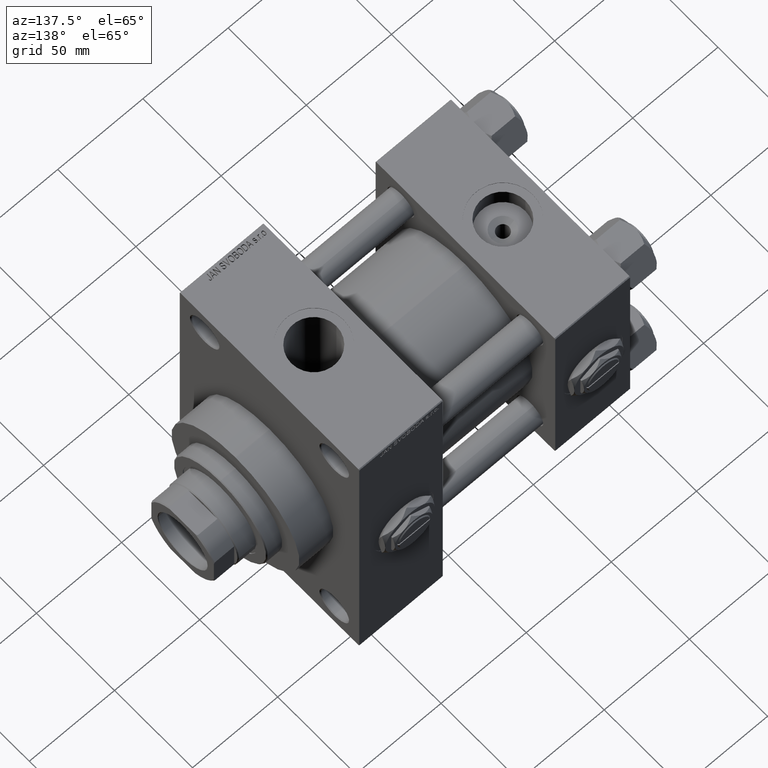
[diagram: clean part render]
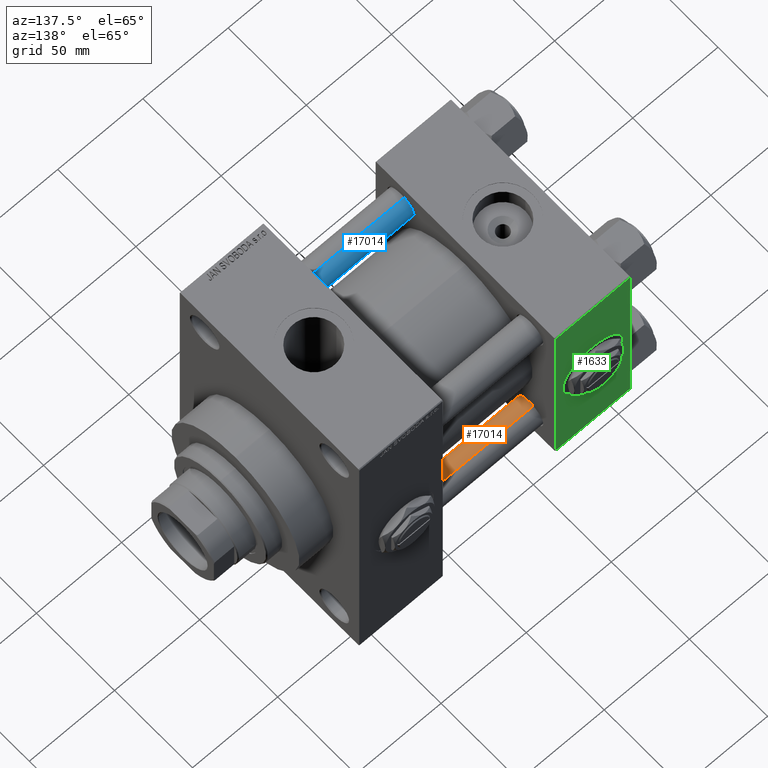
[diagram: same view with three faces highlighted in distinct colors, each labeled with its STEP entity id]
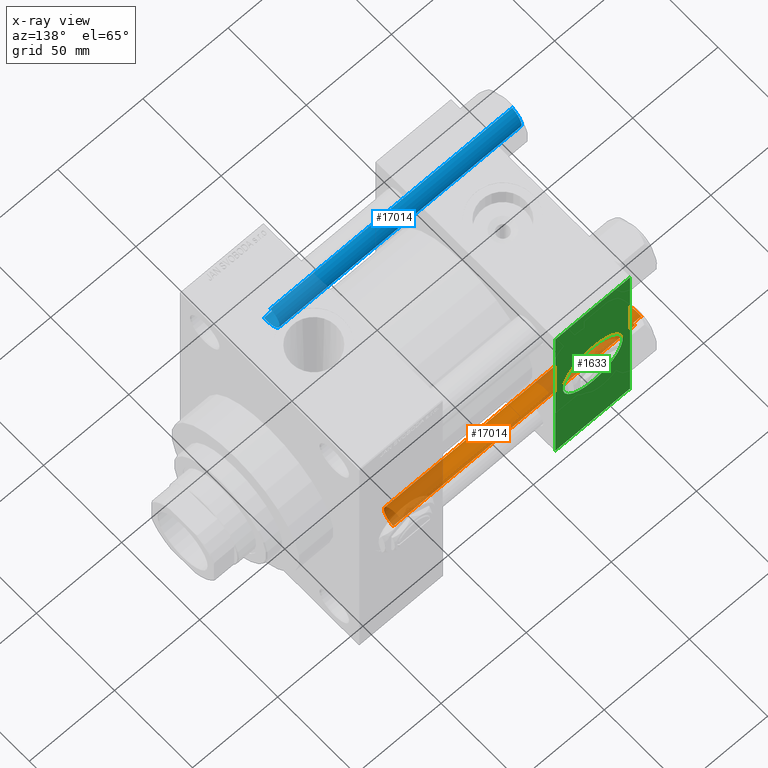
[diagram: x-ray of the same camera — body ghosted, the three highlighted faces saturated]
A machine part, auxiliary view with three faces highlighted in distinct colors.
The next image is the same camera in x-ray (body ghosted, the three faces saturated) — at least one of them is partly hidden behind the body in this view.
Their STEP definitions:

[orange] entity #17014 — the highlighted cylindrical surface (edge-blend (fillet) strip) has radius 8 mm, axis along (1, -0, 0).
#1163 = FACE_OUTER_BOUND ( 'NONE', #42328, .T. ) ;
#3518 = CIRCLE ( 'NONE', #46923, 8.000000000000000000 ) ;
#4329 = DIRECTION ( 'NONE',  ( 1.000000000000000000, 0.000000000000000000, 0.000000000000000000 ) ) ;
#4699 = CARTESIAN_POINT ( 'NONE',  ( 0.000000000000000000, 0.000000000000000000, 143.0000000000000000 ) ) ;
#4827 = DIRECTION ( 'NONE',  ( 0.000000000000000000, 0.000000000000000000, -1.000000000000000000 ) ) ;
#6383 = ORIENTED_EDGE ( 'NONE', *, *, #24731, .T. ) ;
#7910 = ORIENTED_EDGE ( 'NONE', *, *, #34220, .T. ) ;
#10032 = CARTESIAN_POINT ( 'NONE',  ( -8.000000000000000000, 0.000000000000000000, 143.0000000000000000 ) ) ;
#11783 = VERTEX_POINT ( 'NONE', #32484 ) ;
#16436 = DIRECTION ( 'NONE',  ( -0.000000000000000000, -0.000000000000000000, 1.000000000000000000 ) ) ;
#17014 = ADVANCED_FACE ( 'NONE', ( #1163 ), #19573, .T. ) ;
#17738 = VERTEX_POINT ( 'NONE', #48303 ) ;
#18423 = AXIS2_PLACEMENT_3D ( 'NONE', #42609, #4827, #4329 ) ;
#18588 = VERTEX_POINT ( 'NONE', #29204 ) ;
#19573 = CYLINDRICAL_SURFACE ( 'NONE', #41588, 8.000000000000000000 ) ;
#20062 = DIRECTION ( 'NONE',  ( -1.000000000000000000, 0.000000000000000000, 0.000000000000000000 ) ) ;
#20693 = CARTESIAN_POINT ( 'NONE',  ( -8.000000000000000000, 0.000000000000000000, 0.4999999999999726885 ) ) ;
#24731 = EDGE_CURVE ( 'NONE', #17738, #18588, #33704, .T. ) ;
#25415 = DIRECTION ( 'NONE',  ( -0.000000000000000000, -0.000000000000000000, -1.000000000000000000 ) ) ;
#27052 = CARTESIAN_POINT ( 'NONE',  ( 8.000000000000000000, 9.797174393178825657E-16, 143.0000000000000000 ) ) ;
#29061 = VECTOR ( 'NONE', #25415, 1000.000000000000000 ) ;
#29204 = CARTESIAN_POINT ( 'NONE',  ( -8.000000000000000000, 0.000000000000000000, 142.4999999999999716 ) ) ;
#30586 = ORIENTED_EDGE ( 'NONE', *, *, #41503, .F. ) ;
#30827 = DIRECTION ( 'NONE',  ( -0.000000000000000000, -0.000000000000000000, -1.000000000000000000 ) ) ;
#32484 = CARTESIAN_POINT ( 'NONE',  ( 8.000000000000000000, 9.797174393178825657E-16, 0.4999999999999726885 ) ) ;
#32545 = VECTOR ( 'NONE', #30827, 1000.000000000000000 ) ;
#33704 = CIRCLE ( 'NONE', #18423, 8.000000000000000000 ) ;
#34220 = EDGE_CURVE ( 'NONE', #18588, #46529, #43789, .T. ) ;
#35108 = LINE ( 'NONE', #27052, #32545 ) ;
#35580 = CARTESIAN_POINT ( 'NONE',  ( 0.000000000000000000, 0.000000000000000000, 0.4999999999999726885 ) ) ;
#39449 = DIRECTION ( 'NONE',  ( -0.000000000000000000, -0.000000000000000000, -1.000000000000000000 ) ) ;
#39494 = EDGE_CURVE ( 'NONE', #46529, #11783, #3518, .T. ) ;
#41503 = EDGE_CURVE ( 'NONE', #17738, #11783, #35108, .T. ) ;
#41588 = AXIS2_PLACEMENT_3D ( 'NONE', #4699, #39449, #20062 ) ;
#42328 = EDGE_LOOP ( 'NONE', ( #30586, #6383, #7910, #46260 ) ) ;
#42609 = CARTESIAN_POINT ( 'NONE',  ( 0.000000000000000000, 0.000000000000000000, 142.4999999999999716 ) ) ;
#43620 = DIRECTION ( 'NONE',  ( 1.000000000000000000, 0.000000000000000000, 0.000000000000000000 ) ) ;
#43789 = LINE ( 'NONE', #10032, #29061 ) ;
#46260 = ORIENTED_EDGE ( 'NONE', *, *, #39494, .T. ) ;
#46529 = VERTEX_POINT ( 'NONE', #20693 ) ;
#46923 = AXIS2_PLACEMENT_3D ( 'NONE', #35580, #16436, #43620 ) ;
#48303 = CARTESIAN_POINT ( 'NONE',  ( 8.000000000000000000, 9.797174393178825657E-16, 142.4999999999999716 ) ) ;

[blue] entity #17014 — the highlighted cylindrical surface (edge-blend (fillet) strip) has radius 8 mm, axis along (1, 0, 0).
#1163 = FACE_OUTER_BOUND ( 'NONE', #42328, .T. ) ;
#3518 = CIRCLE ( 'NONE', #46923, 8.000000000000000000 ) ;
#4329 = DIRECTION ( 'NONE',  ( 1.000000000000000000, 0.000000000000000000, 0.000000000000000000 ) ) ;
#4699 = CARTESIAN_POINT ( 'NONE',  ( 0.000000000000000000, 0.000000000000000000, 143.0000000000000000 ) ) ;
#4827 = DIRECTION ( 'NONE',  ( 0.000000000000000000, 0.000000000000000000, -1.000000000000000000 ) ) ;
#6383 = ORIENTED_EDGE ( 'NONE', *, *, #24731, .T. ) ;
#7910 = ORIENTED_EDGE ( 'NONE', *, *, #34220, .T. ) ;
#10032 = CARTESIAN_POINT ( 'NONE',  ( -8.000000000000000000, 0.000000000000000000, 143.0000000000000000 ) ) ;
#11783 = VERTEX_POINT ( 'NONE', #32484 ) ;
#16436 = DIRECTION ( 'NONE',  ( -0.000000000000000000, -0.000000000000000000, 1.000000000000000000 ) ) ;
#17014 = ADVANCED_FACE ( 'NONE', ( #1163 ), #19573, .T. ) ;
#17738 = VERTEX_POINT ( 'NONE', #48303 ) ;
#18423 = AXIS2_PLACEMENT_3D ( 'NONE', #42609, #4827, #4329 ) ;
#18588 = VERTEX_POINT ( 'NONE', #29204 ) ;
#19573 = CYLINDRICAL_SURFACE ( 'NONE', #41588, 8.000000000000000000 ) ;
#20062 = DIRECTION ( 'NONE',  ( -1.000000000000000000, 0.000000000000000000, 0.000000000000000000 ) ) ;
#20693 = CARTESIAN_POINT ( 'NONE',  ( -8.000000000000000000, 0.000000000000000000, 0.4999999999999726885 ) ) ;
#24731 = EDGE_CURVE ( 'NONE', #17738, #18588, #33704, .T. ) ;
#25415 = DIRECTION ( 'NONE',  ( -0.000000000000000000, -0.000000000000000000, -1.000000000000000000 ) ) ;
#27052 = CARTESIAN_POINT ( 'NONE',  ( 8.000000000000000000, 9.797174393178825657E-16, 143.0000000000000000 ) ) ;
#29061 = VECTOR ( 'NONE', #25415, 1000.000000000000000 ) ;
#29204 = CARTESIAN_POINT ( 'NONE',  ( -8.000000000000000000, 0.000000000000000000, 142.4999999999999716 ) ) ;
#30586 = ORIENTED_EDGE ( 'NONE', *, *, #41503, .F. ) ;
#30827 = DIRECTION ( 'NONE',  ( -0.000000000000000000, -0.000000000000000000, -1.000000000000000000 ) ) ;
#32484 = CARTESIAN_POINT ( 'NONE',  ( 8.000000000000000000, 9.797174393178825657E-16, 0.4999999999999726885 ) ) ;
#32545 = VECTOR ( 'NONE', #30827, 1000.000000000000000 ) ;
#33704 = CIRCLE ( 'NONE', #18423, 8.000000000000000000 ) ;
#34220 = EDGE_CURVE ( 'NONE', #18588, #46529, #43789, .T. ) ;
#35108 = LINE ( 'NONE', #27052, #32545 ) ;
#35580 = CARTESIAN_POINT ( 'NONE',  ( 0.000000000000000000, 0.000000000000000000, 0.4999999999999726885 ) ) ;
#39449 = DIRECTION ( 'NONE',  ( -0.000000000000000000, -0.000000000000000000, -1.000000000000000000 ) ) ;
#39494 = EDGE_CURVE ( 'NONE', #46529, #11783, #3518, .T. ) ;
#41503 = EDGE_CURVE ( 'NONE', #17738, #11783, #35108, .T. ) ;
#41588 = AXIS2_PLACEMENT_3D ( 'NONE', #4699, #39449, #20062 ) ;
#42328 = EDGE_LOOP ( 'NONE', ( #30586, #6383, #7910, #46260 ) ) ;
#42609 = CARTESIAN_POINT ( 'NONE',  ( 0.000000000000000000, 0.000000000000000000, 142.4999999999999716 ) ) ;
#43620 = DIRECTION ( 'NONE',  ( 1.000000000000000000, 0.000000000000000000, 0.000000000000000000 ) ) ;
#43789 = LINE ( 'NONE', #10032, #29061 ) ;
#46260 = ORIENTED_EDGE ( 'NONE', *, *, #39494, .T. ) ;
#46529 = VERTEX_POINT ( 'NONE', #20693 ) ;
#46923 = AXIS2_PLACEMENT_3D ( 'NONE', #35580, #16436, #43620 ) ;
#48303 = CARTESIAN_POINT ( 'NONE',  ( 8.000000000000000000, 9.797174393178825657E-16, 142.4999999999999716 ) ) ;

[green] entity #1633 — the highlighted planar face has unit normal (0, 1, 0).
#62 = DIRECTION ( 'NONE',  ( 0.000000000000000000, 1.000000000000000000, 0.000000000000000000 ) ) ;
#1633 = ADVANCED_FACE ( 'NONE', ( #22595, #18573 ), #49273, .T. ) ;
#1927 = VERTEX_POINT ( 'NONE', #2899 ) ;
#2899 = CARTESIAN_POINT ( 'NONE',  ( 44.00000000000000000, 57.49999999999999289, -57.00000000000000711 ) ) ;
#4836 = ORIENTED_EDGE ( 'NONE', *, *, #33497, .F. ) ;
#5738 = VERTEX_POINT ( 'NONE', #36400 ) ;
#6683 = CARTESIAN_POINT ( 'NONE',  ( 44.00000000000000000, 57.49999999999999289, -57.00000000000000711 ) ) ;
#7319 = EDGE_CURVE ( 'NONE', #26395, #14190, #27648, .T. ) ;
#7536 = AXIS2_PLACEMENT_3D ( 'NONE', #43712, #39437, #20804 ) ;
#7977 = DIRECTION ( 'NONE',  ( 1.000000000000000000, 0.000000000000000000, 0.000000000000000000 ) ) ;
#9745 = VECTOR ( 'NONE', #42055, 1000.000000000000000 ) ;
#11193 = LINE ( 'NONE', #6683, #11887 ) ;
#11887 = VECTOR ( 'NONE', #37419, 1000.000000000000000 ) ;
#11951 = EDGE_LOOP ( 'NONE', ( #19171, #34339, #20572, #27022 ) ) ;
#12134 = CIRCLE ( 'NONE', #45116, 17.50000000000000000 ) ;
#14190 = VERTEX_POINT ( 'NONE', #21585 ) ;
#15555 = LINE ( 'NONE', #26633, #38217 ) ;
#15679 = CARTESIAN_POINT ( 'NONE',  ( 0.000000000000000000, 57.49999999999999289, 57.50000000000000711 ) ) ;
#15701 = EDGE_LOOP ( 'NONE', ( #4836, #48669 ) ) ;
#16979 = VERTEX_POINT ( 'NONE', #42487 ) ;
#18430 = CARTESIAN_POINT ( 'NONE',  ( 0.000000000000000000, 57.49999999999999289, 57.00000000000003553 ) ) ;
#18573 = FACE_OUTER_BOUND ( 'NONE', #11951, .T. ) ;
#19171 = ORIENTED_EDGE ( 'NONE', *, *, #33987, .T. ) ;
#19387 = LINE ( 'NONE', #22187, #9745 ) ;
#20572 = ORIENTED_EDGE ( 'NONE', *, *, #24772, .F. ) ;
#20804 = DIRECTION ( 'NONE',  ( 0.000000000000000000, 0.000000000000000000, 1.000000000000000000 ) ) ;
#21585 = CARTESIAN_POINT ( 'NONE',  ( 22.00000000000000000, 57.49999999999999289, 17.50000000000000000 ) ) ;
#22187 = CARTESIAN_POINT ( 'NONE',  ( 44.00000000000000000, 57.49999999999999289, 57.50000000000000711 ) ) ;
#22595 = FACE_BOUND ( 'NONE', #15701, .T. ) ;
#23228 = LINE ( 'NONE', #15679, #31280 ) ;
#23434 = EDGE_CURVE ( 'NONE', #1927, #5738, #11193, .T. ) ;
#24772 = EDGE_CURVE ( 'NONE', #49677, #5738, #23228, .T. ) ;
#26395 = VERTEX_POINT ( 'NONE', #46596 ) ;
#26633 = CARTESIAN_POINT ( 'NONE',  ( 44.00000000000000000, 57.49999999999999289, 57.00000000000003553 ) ) ;
#27022 = ORIENTED_EDGE ( 'NONE', *, *, #46027, .T. ) ;
#27648 = CIRCLE ( 'NONE', #7536, 17.50000000000000000 ) ;
#30167 = DIRECTION ( 'NONE',  ( 0.000000000000000000, -0.000000000000000000, 1.000000000000000000 ) ) ;
#31280 = VECTOR ( 'NONE', #31526, 1000.000000000000000 ) ;
#31491 = AXIS2_PLACEMENT_3D ( 'NONE', #49522, #38696, #30167 ) ;
#31526 = DIRECTION ( 'NONE',  ( 0.000000000000000000, 0.000000000000000000, -1.000000000000000000 ) ) ;
#31798 = DIRECTION ( 'NONE',  ( 0.000000000000000000, 0.000000000000000000, 1.000000000000000000 ) ) ;
#33497 = EDGE_CURVE ( 'NONE', #14190, #26395, #12134, .T. ) ;
#33987 = EDGE_CURVE ( 'NONE', #16979, #1927, #19387, .T. ) ;
#34339 = ORIENTED_EDGE ( 'NONE', *, *, #23434, .T. ) ;
#34835 = CARTESIAN_POINT ( 'NONE',  ( 22.00000000000000000, 57.49999999999999289, 0.000000000000000000 ) ) ;
#36400 = CARTESIAN_POINT ( 'NONE',  ( 0.000000000000000000, 57.49999999999999289, -57.00000000000000711 ) ) ;
#37419 = DIRECTION ( 'NONE',  ( -1.000000000000000000, 0.000000000000000000, 0.000000000000000000 ) ) ;
#38217 = VECTOR ( 'NONE', #7977, 1000.000000000000000 ) ;
#38696 = DIRECTION ( 'NONE',  ( -0.000000000000000000, 1.000000000000000000, 0.000000000000000000 ) ) ;
#39437 = DIRECTION ( 'NONE',  ( 0.000000000000000000, 1.000000000000000000, 0.000000000000000000 ) ) ;
#42055 = DIRECTION ( 'NONE',  ( 0.000000000000000000, 0.000000000000000000, -1.000000000000000000 ) ) ;
#42487 = CARTESIAN_POINT ( 'NONE',  ( 44.00000000000000000, 57.49999999999999289, 57.00000000000003553 ) ) ;
#43712 = CARTESIAN_POINT ( 'NONE',  ( 22.00000000000000000, 57.49999999999999289, 0.000000000000000000 ) ) ;
#45116 = AXIS2_PLACEMENT_3D ( 'NONE', #34835, #62, #31798 ) ;
#46027 = EDGE_CURVE ( 'NONE', #49677, #16979, #15555, .T. ) ;
#46596 = CARTESIAN_POINT ( 'NONE',  ( 22.00000000000000355, 57.49999999999999289, -17.50000000000000000 ) ) ;
#48669 = ORIENTED_EDGE ( 'NONE', *, *, #7319, .F. ) ;
#49273 = PLANE ( 'NONE',  #31491 ) ;
#49522 = CARTESIAN_POINT ( 'NONE',  ( 44.00000000000000000, 57.49999999999999289, 57.50000000000000711 ) ) ;
#49677 = VERTEX_POINT ( 'NONE', #18430 ) ;